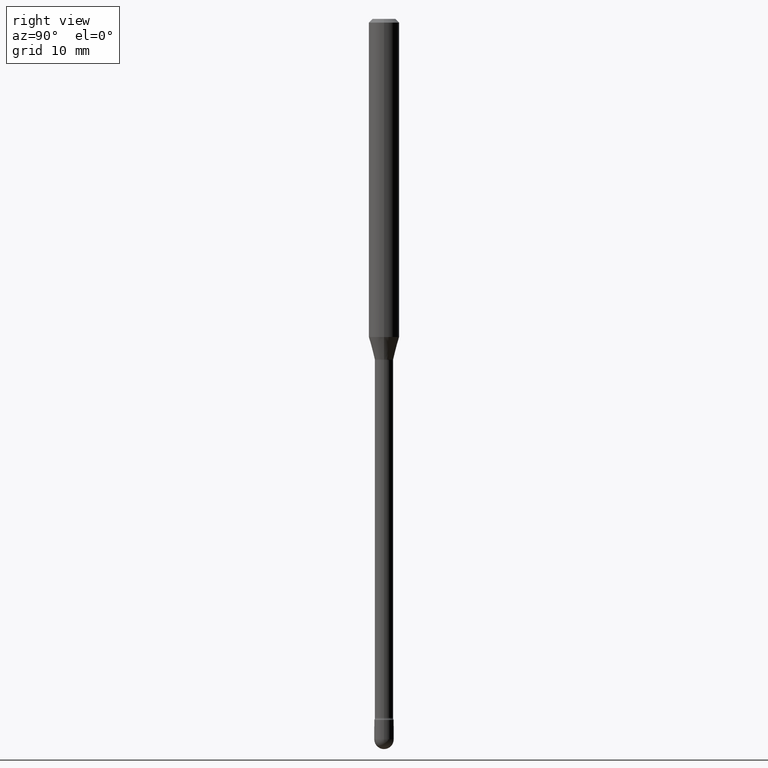
[diagram: clean part render]
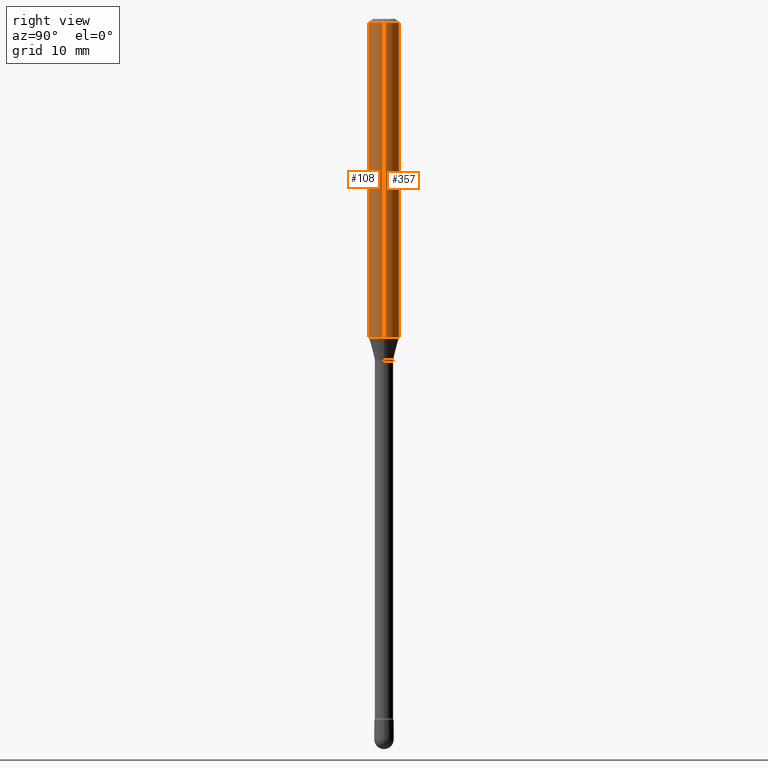
[diagram: same view with one multi-face feature highlighted, each face labeled with its STEP entity id]
A machine part, right view. The highlighted faces form ONE feature: a constant-radius fillet chain: 2 tangent blend faces with common blend radius 1.5875 mm. The faces share edges in the B-rep.
Their STEP definitions:
[1] entity #108 (Cylinder):
#5 = CARTESIAN_POINT ( 'NONE',  ( 3.668203209277725232E-31, -5.237222008264747365E-17, -0.01500000000000008271 ) ) ;
#15 = VERTEX_POINT ( 'NONE', #22 ) ;
#22 = CARTESIAN_POINT ( 'NONE',  ( -0.06250000000000000000, -1.863905534790959713E-15, -0.01500000000000008271 ) ) ;
#29 = DIRECTION ( 'NONE',  ( -2.445468806185136597E-29, 3.491481338843145583E-15, 1.000000000000000000 ) ) ;
#51 = CARTESIAN_POINT ( 'NONE',  ( -0.06250000000000000000, -4.119528059349334569E-15, -1.307071934891535170 ) ) ;
#52 = EDGE_CURVE ( 'NONE', #159, #466, #512, .T. ) ;
#71 = DIRECTION ( 'NONE',  ( 1.000000000000000000, -6.982962677686262766E-15, 0.000000000000000000 ) ) ;
#76 = CARTESIAN_POINT ( 'NONE',  ( 3.196403644217299364E-29, -4.563617269199397974E-15, -1.307071934891535170 ) ) ;
#81 = DIRECTION ( 'NONE',  ( -2.445468806185136877E-29, 3.491481338843145188E-15, 1.000000000000000000 ) ) ;
#106 = ORIENTED_EDGE ( 'NONE', *, *, #52, .T. ) ;
#108 = ADVANCED_FACE ( 'NONE', ( #234 ), #507, .T. ) ;
#119 = VERTEX_POINT ( 'NONE', #457 ) ;
#156 = DIRECTION ( 'NONE',  ( 1.000000000000000000, -6.982962677686266711E-15, 4.852736867747366207E-29 ) ) ;
#159 = VERTEX_POINT ( 'NONE', #51 ) ;
#178 = AXIS2_PLACEMENT_3D ( 'NONE', #76, #29, #71 ) ;
#212 = EDGE_LOOP ( 'NONE', ( #224, #106, #358, #363 ) ) ;
#224 = ORIENTED_EDGE ( 'NONE', *, *, #266, .F. ) ;
#234 = FACE_OUTER_BOUND ( 'NONE', #212, .T. ) ;
#240 = AXIS2_PLACEMENT_3D ( 'NONE', #459, #284, #156 ) ;
#266 = EDGE_CURVE ( 'NONE', #159, #15, #332, .T. ) ;
#272 = CARTESIAN_POINT ( 'NONE',  ( 0.06250000000000000000, -5.000052436554788855E-15, -1.307071934891535170 ) ) ;
#284 = DIRECTION ( 'NONE',  ( -2.445468806185136597E-29, 3.491481338843145583E-15, 1.000000000000000000 ) ) ;
#316 = DIRECTION ( 'NONE',  ( -2.445468806185136597E-29, 3.491481338843145583E-15, 1.000000000000000000 ) ) ;
#332 = LINE ( 'NONE', #521, #522 ) ;
#355 = LINE ( 'NONE', #530, #537 ) ;
#358 = ORIENTED_EDGE ( 'NONE', *, *, #442, .T. ) ;
#363 = ORIENTED_EDGE ( 'NONE', *, *, #516, .F. ) ;
#367 = CIRCLE ( 'NONE', #409, 0.06250000000000000000 ) ;
#409 = AXIS2_PLACEMENT_3D ( 'NONE', #5, #316, #502 ) ;
#442 = EDGE_CURVE ( 'NONE', #466, #119, #355, .T. ) ;
#457 = CARTESIAN_POINT ( 'NONE',  ( 0.06250000000000000000, -4.888073874380391431E-16, -0.01500000000000008271 ) ) ;
#459 = CARTESIAN_POINT ( 'NONE',  ( -1.169113584055446105E-44, 1.669184350826100908E-30, 4.780733988912460139E-16 ) ) ;
#466 = VERTEX_POINT ( 'NONE', #272 ) ;
#502 = DIRECTION ( 'NONE',  ( 1.000000000000000000, -6.982962677686266711E-15, 0.000000000000000000 ) ) ;
#507 = CYLINDRICAL_SURFACE ( 'NONE', #240, 0.06250000000000000000 ) ;
#512 = CIRCLE ( 'NONE', #178, 0.06250000000000000000 ) ;
#516 = EDGE_CURVE ( 'NONE', #15, #119, #367, .T. ) ;
#521 = CARTESIAN_POINT ( 'NONE',  ( -0.06250000000000000000, 4.440892098500642925E-16, 4.780733988912429571E-16 ) ) ;
#522 = VECTOR ( 'NONE', #81, 39.37007874015748143 ) ;
#530 = CARTESIAN_POINT ( 'NONE',  ( 0.06250000000000000000, -4.364351673553899931E-16, 4.780733988912490708E-16 ) ) ;
#534 = DIRECTION ( 'NONE',  ( -2.445468806185136877E-29, 3.491481338843145188E-15, 1.000000000000000000 ) ) ;
#537 = VECTOR ( 'NONE', #534, 39.37007874015748143 ) ;
[2] entity #357 (Cylinder):
#6 = DIRECTION ( 'NONE',  ( 1.000000000000000000, -6.982962677686262766E-15, 0.000000000000000000 ) ) ;
#15 = VERTEX_POINT ( 'NONE', #22 ) ;
#22 = CARTESIAN_POINT ( 'NONE',  ( -0.06250000000000000000, -1.863905534790959713E-15, -0.01500000000000008271 ) ) ;
#51 = CARTESIAN_POINT ( 'NONE',  ( -0.06250000000000000000, -4.119528059349334569E-15, -1.307071934891535170 ) ) ;
#60 = CARTESIAN_POINT ( 'NONE',  ( 3.196403644217299364E-29, -4.563617269199397974E-15, -1.307071934891535170 ) ) ;
#78 = ORIENTED_EDGE ( 'NONE', *, *, #442, .F. ) ;
#81 = DIRECTION ( 'NONE',  ( -2.445468806185136877E-29, 3.491481338843145188E-15, 1.000000000000000000 ) ) ;
#119 = VERTEX_POINT ( 'NONE', #457 ) ;
#150 = EDGE_CURVE ( 'NONE', #119, #15, #438, .T. ) ;
#159 = VERTEX_POINT ( 'NONE', #51 ) ;
#165 = DIRECTION ( 'NONE',  ( 1.000000000000000000, -6.982962677686266711E-15, 0.000000000000000000 ) ) ;
#188 = AXIS2_PLACEMENT_3D ( 'NONE', #339, #211, #165 ) ;
#196 = AXIS2_PLACEMENT_3D ( 'NONE', #223, #305, #392 ) ;
#211 = DIRECTION ( 'NONE',  ( -2.445468806185136597E-29, 3.491481338843145583E-15, 1.000000000000000000 ) ) ;
#223 = CARTESIAN_POINT ( 'NONE',  ( -1.169113584055446105E-44, 1.669184350826100908E-30, 4.780733988912460139E-16 ) ) ;
#266 = EDGE_CURVE ( 'NONE', #159, #15, #332, .T. ) ;
#272 = CARTESIAN_POINT ( 'NONE',  ( 0.06250000000000000000, -5.000052436554788855E-15, -1.307071934891535170 ) ) ;
#276 = ORIENTED_EDGE ( 'NONE', *, *, #150, .F. ) ;
#289 = AXIS2_PLACEMENT_3D ( 'NONE', #60, #496, #6 ) ;
#305 = DIRECTION ( 'NONE',  ( -2.445468806185136597E-29, 3.491481338843145583E-15, 1.000000000000000000 ) ) ;
#308 = ORIENTED_EDGE ( 'NONE', *, *, #424, .T. ) ;
#332 = LINE ( 'NONE', #521, #522 ) ;
#339 = CARTESIAN_POINT ( 'NONE',  ( 3.668203209277725232E-31, -5.237222008264747365E-17, -0.01500000000000008271 ) ) ;
#340 = ORIENTED_EDGE ( 'NONE', *, *, #266, .T. ) ;
#355 = LINE ( 'NONE', #530, #537 ) ;
#357 = ADVANCED_FACE ( 'NONE', ( #487 ), #394, .T. ) ;
#392 = DIRECTION ( 'NONE',  ( 1.000000000000000000, -6.982962677686266711E-15, 4.852736867747366207E-29 ) ) ;
#394 = CYLINDRICAL_SURFACE ( 'NONE', #196, 0.06250000000000000000 ) ;
#424 = EDGE_CURVE ( 'NONE', #466, #159, #523, .T. ) ;
#438 = CIRCLE ( 'NONE', #188, 0.06250000000000000000 ) ;
#442 = EDGE_CURVE ( 'NONE', #466, #119, #355, .T. ) ;
#457 = CARTESIAN_POINT ( 'NONE',  ( 0.06250000000000000000, -4.888073874380391431E-16, -0.01500000000000008271 ) ) ;
#466 = VERTEX_POINT ( 'NONE', #272 ) ;
#487 = FACE_OUTER_BOUND ( 'NONE', #555, .T. ) ;
#496 = DIRECTION ( 'NONE',  ( -2.445468806185136597E-29, 3.491481338843145583E-15, 1.000000000000000000 ) ) ;
#521 = CARTESIAN_POINT ( 'NONE',  ( -0.06250000000000000000, 4.440892098500642925E-16, 4.780733988912429571E-16 ) ) ;
#522 = VECTOR ( 'NONE', #81, 39.37007874015748143 ) ;
#523 = CIRCLE ( 'NONE', #289, 0.06250000000000000000 ) ;
#530 = CARTESIAN_POINT ( 'NONE',  ( 0.06250000000000000000, -4.364351673553899931E-16, 4.780733988912490708E-16 ) ) ;
#534 = DIRECTION ( 'NONE',  ( -2.445468806185136877E-29, 3.491481338843145188E-15, 1.000000000000000000 ) ) ;
#537 = VECTOR ( 'NONE', #534, 39.37007874015748143 ) ;
#555 = EDGE_LOOP ( 'NONE', ( #308, #340, #276, #78 ) ) ;